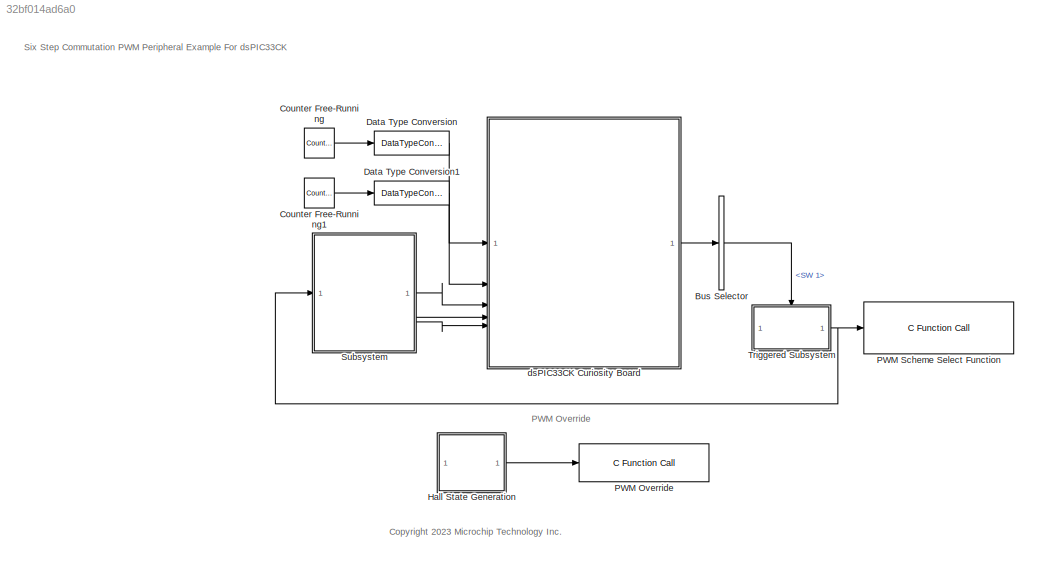
MODEL slx_32bf014ad6a0
KIND model
CONFIG AbsTol = auto
CONFIG EnableMultiTasking = on
CONFIG FixedStep = 50e-6
CONFIG MaxStep = auto
CONFIG MinStep = auto
CONFIG RelTol = 1e-3
CONFIG SampleTimeConstraint = Unconstrained
CONFIG SolverName = FixedStepDiscrete
CONFIG StartTime = 0.0
CONFIG StopTime = 10.0
BLOCK [BusSelector] Bus Selector
  OutputSignals = btn.SW 1
BLOCK [Reference] Counter Free-Running  REF=simulink/Sources/Counter
Free-Running
  SourceBlock = simulink/Sources/Counter\nFree-Running
  SourceType = Counter Free-Running
BLOCK [Reference] Counter Free-Running1  REF=simulink/Sources/Counter
Free-Running
  SourceBlock = simulink/Sources/Counter\nFree-Running
  SourceType = Counter Free-Running
BLOCK [DataTypeConversion] Data Type Conversion
  OutDataTypeStr = boolean
  RndMeth = Floor
  SaturateOnIntegerOverflow = off
BLOCK [DataTypeConversion] Data Type Conversion1
  OutDataTypeStr = boolean
  RndMeth = Floor
  SaturateOnIntegerOverflow = off
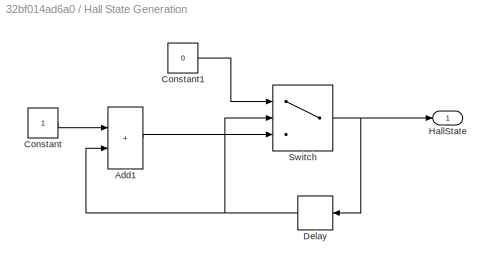
BLOCK [SubSystem] Hall State Generation
BLOCK [Sum] Hall State Generation/Add1
  IconShape = rectangular
  SaturateOnIntegerOverflow = on
BLOCK [Constant] Hall State Generation/Constant
  OutDataTypeStr = uint16
  SampleTime = 0.2e-3
BLOCK [Constant] Hall State Generation/Constant1
  OutDataTypeStr = uint16
  SampleTime = 0.2e-3
  Value = 0
BLOCK [Delay] Hall State Generation/Delay
  DelayLength = 1
  InputPortMap = u0
BLOCK [Outport] Hall State Generation/HallState
BLOCK [Switch] Hall State Generation/Switch
  InputSameDT = off
  SaturateOnIntegerOverflow = off
  Threshold = 5
BLOCK [Reference] PWM Override  REF=MCHP_Blockset/User Functions/C Function Call
  SourceBlock = MCHP_Blockset/User Functions/C Function Call
  SourceProductName = MPLAB Device Blocks for Simulink
  SourceType = C Function Call
  UserDataPersistent = on
BLOCK [Reference] PWM Scheme Select Function  REF=MCHP_Blockset/User Functions/C Function Call
  SourceBlock = MCHP_Blockset/User Functions/C Function Call
  SourceProductName = MPLAB Device Blocks for Simulink
  SourceType = C Function Call
  UserDataPersistent = on
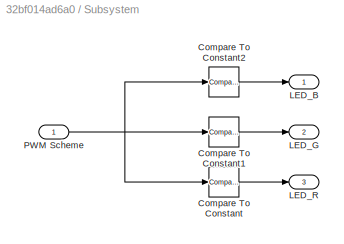
BLOCK [SubSystem] Subsystem
BLOCK [Reference] Subsystem/Compare To Constant  REF=simulink/Logic and Bit
Operations/Compare
To Constant
  SourceBlock = simulink/Logic and Bit\nOperations/Compare\nTo Constant
  SourceType = Compare To Constant
BLOCK [Reference] Subsystem/Compare To Constant1  REF=simulink/Logic and Bit
Operations/Compare
To Constant
  SourceBlock = simulink/Logic and Bit\nOperations/Compare\nTo Constant
  SourceType = Compare To Constant
BLOCK [Reference] Subsystem/Compare To Constant2  REF=simulink/Logic and Bit
Operations/Compare
To Constant
  SourceBlock = simulink/Logic and Bit\nOperations/Compare\nTo Constant
  SourceType = Compare To Constant
BLOCK [Outport] Subsystem/LED_B
  NameLocation = top
BLOCK [Outport] Subsystem/LED_G
  NameLocation = top
  Port = 2
BLOCK [Outport] Subsystem/LED_R
  NameLocation = top
  Port = 3
BLOCK [Inport] Subsystem/PWM Scheme
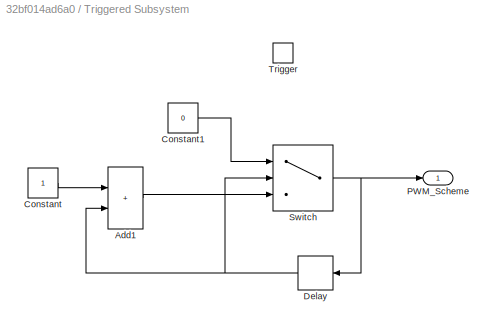
BLOCK [SubSystem] Triggered Subsystem
  TreatAsAtomicUnit = on
BLOCK [Sum] Triggered Subsystem/Add1
  IconShape = rectangular
  SaturateOnIntegerOverflow = on
BLOCK [Constant] Triggered Subsystem/Constant
  OutDataTypeStr = uint16
BLOCK [Constant] Triggered Subsystem/Constant1
  OutDataTypeStr = uint16
  Value = 0
BLOCK [Delay] Triggered Subsystem/Delay
  DelayLength = 1
  InputPortMap = u0
BLOCK [Outport] Triggered Subsystem/PWM_Scheme
BLOCK [Switch] Triggered Subsystem/Switch
  InputSameDT = off
  SaturateOnIntegerOverflow = off
  Threshold = 5
BLOCK [TriggerPort] Triggered Subsystem/Trigger
  StatesWhenEnabling = held
  TriggerType = falling
  VariantControl = Variant
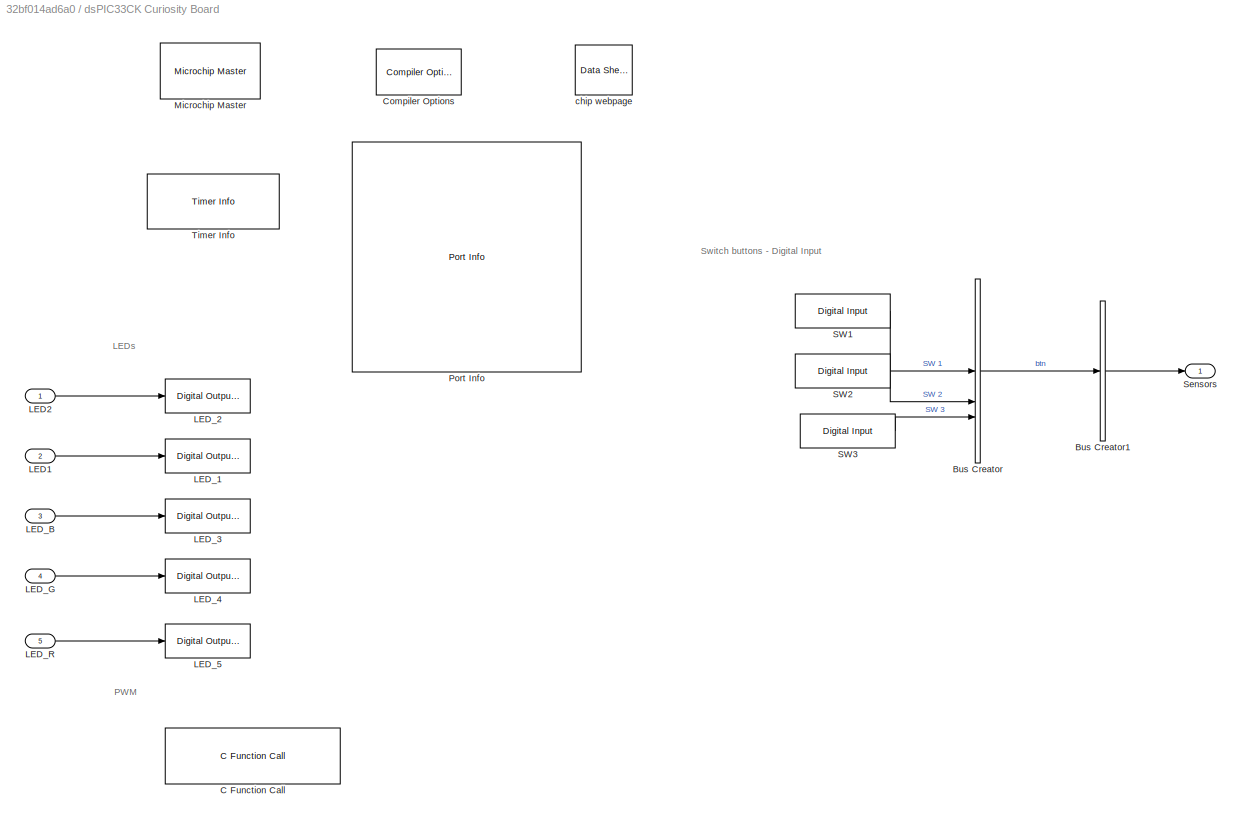
BLOCK [SubSystem] dsPIC33CK Curiosity Board
BLOCK [BusCreator] dsPIC33CK Curiosity Board/Bus Creator
  DisplayOption = bar
  InheritFromInputs = on
  Inputs = 3
BLOCK [BusCreator] dsPIC33CK Curiosity Board/Bus Creator1
  DisplayOption = bar
  InheritFromInputs = on
  Inputs = 1
BLOCK [Reference] dsPIC33CK Curiosity Board/C Function Call  REF=MCHP_Blockset/User Functions/C Function Call
  SourceBlock = MCHP_Blockset/User Functions/C Function Call
  SourceProductName = MPLAB Device Blocks for Simulink
  SourceType = C Function Call
  UserDataPersistent = on
BLOCK [Reference] dsPIC33CK Curiosity Board/Compiler Options  REF=MCHP_Blockset/System Configuration/Compiler Options
  Priority = 1
  SourceBlock = MCHP_Blockset/System Configuration/Compiler Options
  SourceProductName = MPLAB Device Blocks for Simulink
BLOCK [Inport] dsPIC33CK Curiosity Board/LED1
  Port = 2
BLOCK [Inport] dsPIC33CK Curiosity Board/LED2
BLOCK [Reference] dsPIC33CK Curiosity Board/LED_1  REF=MCHP_Blockset/Digital IO/Digital Output
Write
  SourceBlock = MCHP_Blockset/Digital IO/Digital Output\nWrite
  SourceProductName = MPLAB Device Blocks for Simulink
  SourceType = Output driver for Digital Output Pins
BLOCK [Reference] dsPIC33CK Curiosity Board/LED_2  REF=MCHP_Blockset/Digital IO/Digital Output
Write
  SourceBlock = MCHP_Blockset/Digital IO/Digital Output\nWrite
  SourceProductName = MPLAB Device Blocks for Simulink
  SourceType = Output driver for Digital Output Pins
BLOCK [Reference] dsPIC33CK Curiosity Board/LED_3  REF=MCHP_Blockset/Digital IO/Digital Output
Write
  SourceBlock = MCHP_Blockset/Digital IO/Digital Output\nWrite
  SourceProductName = MPLAB Device Blocks for Simulink
  SourceType = Output driver for Digital Output Pins
BLOCK [Reference] dsPIC33CK Curiosity Board/LED_4  REF=MCHP_Blockset/Digital IO/Digital Output
Write
  SourceBlock = MCHP_Blockset/Digital IO/Digital Output\nWrite
  SourceProductName = MPLAB Device Blocks for Simulink
  SourceType = Output driver for Digital Output Pins
BLOCK [Reference] dsPIC33CK Curiosity Board/LED_5  REF=MCHP_Blockset/Digital IO/Digital Output
Write
  SourceBlock = MCHP_Blockset/Digital IO/Digital Output\nWrite
  SourceProductName = MPLAB Device Blocks for Simulink
  SourceType = Output driver for Digital Output Pins
BLOCK [Inport] dsPIC33CK Curiosity Board/LED_B
  Port = 3
BLOCK [Inport] dsPIC33CK Curiosity Board/LED_G
  Port = 4
BLOCK [Inport] dsPIC33CK Curiosity Board/LED_R
  Port = 5
BLOCK [Reference] dsPIC33CK Curiosity Board/Microchip Master  REF=MCHP_Blockset/System Configuration/Microchip Master
  Priority = 1
  SourceBlock = MCHP_Blockset/System Configuration/Microchip Master
  SourceProductName = MPLAB Device Blocks for Simulink
BLOCK [Reference] dsPIC33CK Curiosity Board/Port Info  REF=MCHP_Blockset/System Info/Port Info
  SourceBlock = MCHP_Blockset/System Info/Port Info
  SourceProductName = MPLAB Device Blocks for Simulink
BLOCK [Reference] dsPIC33CK Curiosity Board/SW1  REF=MCHP_Blockset/Digital IO/Digital Input
  SourceBlock = MCHP_Blockset/Digital IO/Digital Input
  SourceProductName = MPLAB Device Blocks for Simulink
  SourceType = Input driver for Digital Input Pins
BLOCK [Reference] dsPIC33CK Curiosity Board/SW2  REF=MCHP_Blockset/Digital IO/Digital Input
  SourceBlock = MCHP_Blockset/Digital IO/Digital Input
  SourceProductName = MPLAB Device Blocks for Simulink
  SourceType = Input driver for Digital Input Pins
BLOCK [Reference] dsPIC33CK Curiosity Board/SW3  REF=MCHP_Blockset/Digital IO/Digital Input
  SourceBlock = MCHP_Blockset/Digital IO/Digital Input
  SourceProductName = MPLAB Device Blocks for Simulink
  SourceType = Input driver for Digital Input Pins
BLOCK [Outport] dsPIC33CK Curiosity Board/Sensors
BLOCK [Reference] dsPIC33CK Curiosity Board/Timer Info  REF=MCHP_Blockset/System Info/Timer Info
  SourceBlock = MCHP_Blockset/System Info/Timer Info
  SourceProductName = MPLAB Device Blocks for Simulink
BLOCK [Reference] dsPIC33CK Curiosity Board/chip webpage  REF=MCHP_Blockset/System Info/Data Sheet
  AttributesFormatString = %<cpy_MCHP_Id>
  SourceBlock = MCHP_Blockset/System Info/Data Sheet
  SourceProductName = MPLAB Device Blocks for Simulink
ANNOTATION (root): <copyright redacted>
ANNOTATION (root): Six Step Commutation PWM Peripheral Example For dsPIC33CK
ANNOTATION (root): PWM Override
ANNOTATION dsPIC33CK Curiosity Board: LEDs
ANNOTATION dsPIC33CK Curiosity Board: PWM
ANNOTATION dsPIC33CK Curiosity Board: Switch buttons - Digital Input
LINE Bus Selector:1 -> Triggered Subsystem:trigger
LINE Counter Free-Running1:1 -> Data Type Conversion1:1
LINE Counter Free-Running:1 -> Data Type Conversion:1
LINE Data Type Conversion1:1 -> dsPIC33CK Curiosity Board:2
LINE Data Type Conversion:1 -> dsPIC33CK Curiosity Board:1
LINE Hall State Generation/Add1:1 -> Hall State Generation/Switch:3
LINE Hall State Generation/Constant1:1 -> Hall State Generation/Switch:1
LINE Hall State Generation/Constant:1 -> Hall State Generation/Add1:1
NET Hall State Generation/Delay:1 -> Hall State Generation/Add1:2, Hall State Generation/Switch:2
NET Hall State Generation/Switch:1 -> Hall State Generation/Delay:1, Hall State Generation/HallState:1
LINE Hall State Generation:1 -> PWM Override:1
LINE Subsystem/Compare To Constant1:1 -> Subsystem/LED_G:1
LINE Subsystem/Compare To Constant2:1 -> Subsystem/LED_B:1
LINE Subsystem/Compare To Constant:1 -> Subsystem/LED_R:1
NET Subsystem/PWM Scheme:1 -> Subsystem/Compare To Constant1:1, Subsystem/Compare To Constant2:1, Subsystem/Compare To Constant:1
LINE Subsystem:1 -> dsPIC33CK Curiosity Board:3
LINE Subsystem:2 -> dsPIC33CK Curiosity Board:4
LINE Subsystem:3 -> dsPIC33CK Curiosity Board:5
LINE Triggered Subsystem/Add1:1 -> Triggered Subsystem/Switch:3
LINE Triggered Subsystem/Constant1:1 -> Triggered Subsystem/Switch:1
LINE Triggered Subsystem/Constant:1 -> Triggered Subsystem/Add1:1
NET Triggered Subsystem/Delay:1 -> Triggered Subsystem/Add1:2, Triggered Subsystem/Switch:2
NET Triggered Subsystem/Switch:1 -> Triggered Subsystem/Delay:1, Triggered Subsystem/PWM_Scheme:1
NET Triggered Subsystem:1 -> PWM Scheme Select Function:1, Subsystem:1
LINE dsPIC33CK Curiosity Board/Bus Creator1:1 -> dsPIC33CK Curiosity Board/Sensors:1
LINE dsPIC33CK Curiosity Board/Bus Creator:1 -> dsPIC33CK Curiosity Board/Bus Creator1:1
LINE dsPIC33CK Curiosity Board/LED1:1 -> dsPIC33CK Curiosity Board/LED_1:1
LINE dsPIC33CK Curiosity Board/LED2:1 -> dsPIC33CK Curiosity Board/LED_2:1
LINE dsPIC33CK Curiosity Board/LED_B:1 -> dsPIC33CK Curiosity Board/LED_3:1
LINE dsPIC33CK Curiosity Board/LED_G:1 -> dsPIC33CK Curiosity Board/LED_4:1
LINE dsPIC33CK Curiosity Board/LED_R:1 -> dsPIC33CK Curiosity Board/LED_5:1
LINE dsPIC33CK Curiosity Board/SW1:1 -> dsPIC33CK Curiosity Board/Bus Creator:1
LINE dsPIC33CK Curiosity Board/SW2:1 -> dsPIC33CK Curiosity Board/Bus Creator:2
LINE dsPIC33CK Curiosity Board/SW3:1 -> dsPIC33CK Curiosity Board/Bus Creator:3
LINE dsPIC33CK Curiosity Board:1 -> Bus Selector:1
note: NET lines group one-source signal fan-out (src -> all destinations, sorted); 1:1 wires keep LINE
